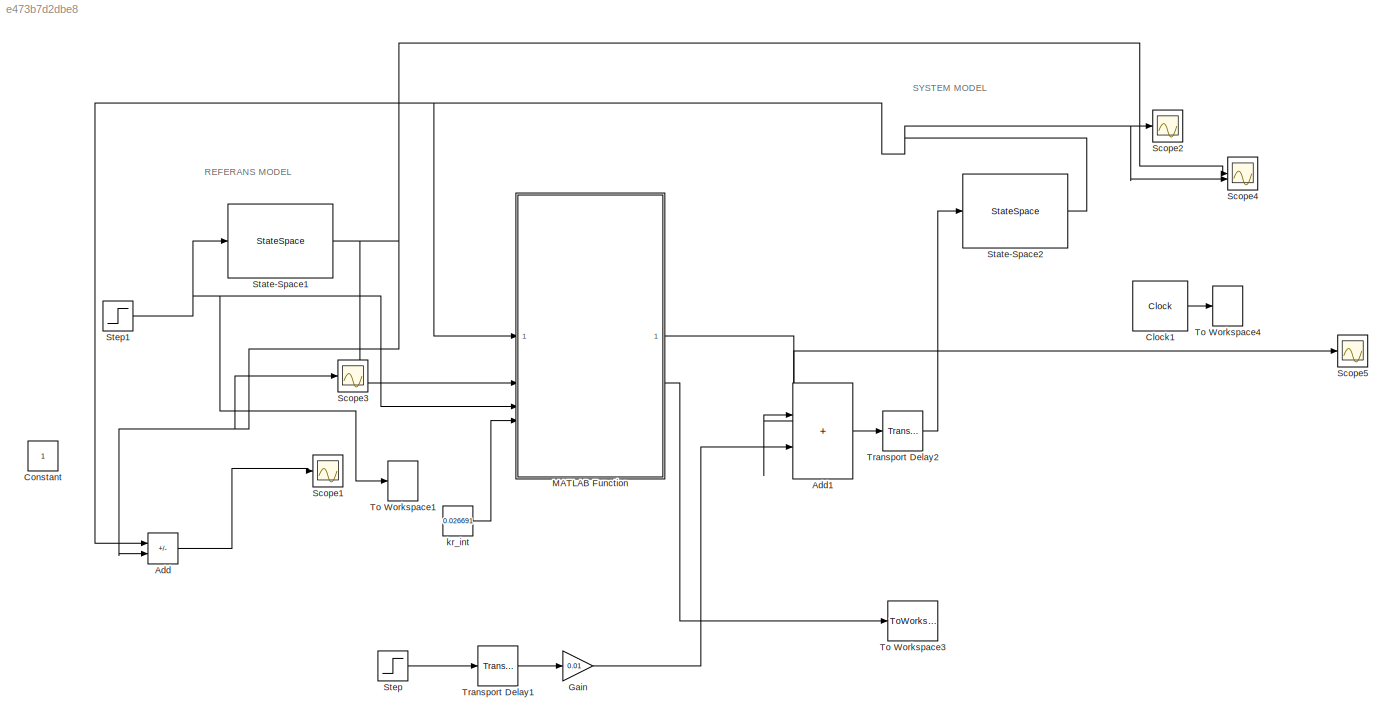
MODEL slx_e473b7d2dbe8
KIND model
CONFIG AbsTol = auto
CONFIG EnableMultiTasking = off
CONFIG FixedStep = 0.001
CONFIG MaxStep = auto
CONFIG MinStep = auto
CONFIG RelTol = 1e-3
CONFIG SampleTimeConstraint = Unconstrained
CONFIG SolverName = ode5
CONFIG StartTime = 0.0
CONFIG StopTime = 60
BLOCK [Sum] Add
  IconShape = rectangular
  Inputs = -+
BLOCK [Sum] Add1
  IconShape = rectangular
BLOCK [Clock] Clock1
  Decimation = 1
  DisplayTime = on
BLOCK [Constant] Constant
BLOCK [Gain] Gain
  Gain = 0.01
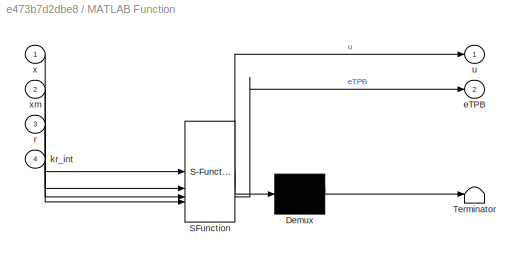
BLOCK [SubSystem] MATLAB Function
  ErrorFcn = Stateflow.Translate.translate
  LibrarySourceBlock = simulink/User-Defined\nFunctions/MATLAB Function
  PermitHierarchicalResolution = ExplicitOnly
  SFBlockType = MATLAB Function
  TreatAsAtomicUnit = on
BLOCK [Demux] MATLAB Function/ Demux 
  Outputs = 1
BLOCK [S-Function] MATLAB Function/ SFunction 
  EnableBusSupport = on
  FunctionName = sf_sfun
  PortCounts = [4 3]
  SFcnIsStateOwnerBlock = off
  SFunctionDeploymentMode = off
  Tag = Stateflow S-Function 2
BLOCK [Terminator] MATLAB Function/ Terminator 
BLOCK [Outport] MATLAB Function/eTPB
  Port = 2
BLOCK [Inport] MATLAB Function/kr_int
  Port = 4
BLOCK [Inport] MATLAB Function/r
  Port = 3
BLOCK [Outport] MATLAB Function/u
BLOCK [Inport] MATLAB Function/x
BLOCK [Inport] MATLAB Function/xm
  Port = 2
BLOCK [Scope] Scope1
  Floating = off
  NumInputPorts = 1
  ScopeSpecificationString = Simulink.scopes.TimeScopeBlockCfg('CurrentConfiguration', extmgr.ConfigurationSet(extmgr.Configuration('Core','General UI',true),extmgr.Configuration('Core','Source UI',true),extmgr.Configuration('Sources','WiredSimulink',true,'DataLoggingVariableName','ScopeData1'),extmgr.Configuration('Visuals','Time Domain',true,'SerializedDisplays',{struct('MinYLimReal','-0.18','MaxYLimReal','0.02','YLabelReal...<+1354ch>
BLOCK [Scope] Scope2
  Floating = off
  NumInputPorts = 1
  ScopeSpecificationString = Simulink.scopes.TimeScopeBlockCfg('CurrentConfiguration', extmgr.ConfigurationSet(extmgr.Configuration('Core','General UI',true),extmgr.Configuration('Core','Source UI',true),extmgr.Configuration('Sources','WiredSimulink',true,'DataLoggingVariableName','ScopeData2'),extmgr.Configuration('Visuals','Time Domain',true,'SerializedDisplays',{struct('MinYLimReal','-0.13824','MaxYLimReal','1.17107','YLab...<+1390ch>
BLOCK [Scope] Scope3
  Floating = off
  NumInputPorts = 1
  ScopeSpecificationString = Simulink.scopes.TimeScopeBlockCfg('CurrentConfiguration', extmgr.ConfigurationSet(extmgr.Configuration('Core','General UI',true),extmgr.Configuration('Core','Source UI',true),extmgr.Configuration('Sources','WiredSimulink',true,'DataLoggingVariableName','ScopeData3'),extmgr.Configuration('Visuals','Time Domain',true,'SerializedDisplays',{struct('MinYLimReal','-0.13856','MaxYLimReal','1.17225','YLab...<+1390ch>
BLOCK [Scope] Scope4
  Floating = off
  NumInputPorts = 2
  ScopeSpecificationString = Simulink.scopes.TimeScopeBlockCfg('CurrentConfiguration', extmgr.ConfigurationSet(extmgr.Configuration('Core','General UI',true),extmgr.Configuration('Core','Source UI',true),extmgr.Configuration('Sources','WiredSimulink',true,'DataLoggingVariableName','ScopeData4'),extmgr.Configuration('Visuals','Time Domain',true,'SerializedDisplays',{struct('MinYLimReal','-0.1313','MaxYLimReal','1.18167','YLabe...<+1390ch>
BLOCK [Scope] Scope5
  Floating = off
  NumInputPorts = 1
  ScopeSpecificationString = Simulink.scopes.TimeScopeBlockCfg('CurrentConfiguration', extmgr.ConfigurationSet(extmgr.Configuration('Core','General UI',true),extmgr.Configuration('Core','Source UI',true),extmgr.Configuration('Sources','WiredSimulink',true,'DataLoggingVariableName','ScopeData1'),extmgr.Configuration('Visuals','Time Domain',true,'SerializedDisplays',{struct('MinYLimReal','-1.36978','MaxYLimReal','0.52207','YLab...<+1374ch>
BLOCK [StateSpace] State-Space1
  A = A_ref
  B = B_ref
  C = C_ref
  D = D_ref
  InitialCondition = 0
BLOCK [StateSpace] State-Space2
  A = As
  B = Bs
  C = Cs
  D = Ds
  InitialCondition = 0
BLOCK [Step] Step
  SampleTime = 0
BLOCK [Step] Step1
  SampleTime = 0
BLOCK [ToWorkspace] To Workspace1
  MaxDataPoints = inf
  SampleTime = -1
  VariableName = r
BLOCK [ToWorkspace] To Workspace3
  MaxDataPoints = inf
  SampleTime = -1
  VariableName = eTPB
BLOCK [ToWorkspace] To Workspace4
  MaxDataPoints = inf
  SampleTime = -1
  VariableName = t
BLOCK [TransportDelay] Transport Delay1
  DelayTime = 5
BLOCK [TransportDelay] Transport Delay2
  DelayTime = 0.2
BLOCK [Constant] kr_int
  SampleTime = 0.001
  Value = 0.026691
ANNOTATION (root): REFERANS MODEL
ANNOTATION (root): SYSTEM MODEL
LINE Add1:1 -> Transport Delay2:1
LINE Add:1 -> Scope1:1
LINE Clock1:1 -> To Workspace4:1
LINE Gain:1 -> Add1:2
NET MATLAB Function:1 -> Add1:1, Scope5:1
LINE MATLAB Function:2 -> To Workspace3:1
NET State-Space1:1 -> Add:2, MATLAB Function:2, Scope3:1, Scope4:1
NET State-Space2:1 -> Add:1, MATLAB Function:1, Scope2:1, Scope4:2
NET Step1:1 -> MATLAB Function:3, State-Space1:1, To Workspace1:1
LINE Step:1 -> Transport Delay1:1
LINE Transport Delay1:1 -> Gain:1
LINE Transport Delay2:1 -> State-Space2:1
LINE kr_int:1 -> MATLAB Function:4
note: NET lines group one-source signal fan-out (src -> all destinations, sorted); 1:1 wires keep LINE
CHART MATLAB Function states=1 transitions=1
  STATE_LABEL 'eML_blk_kernel()'
  STATE_LABEL "SCRIPT:\n% HT-MRAK Kontrol Yapısı – MATLAB Function\nfunction [u,eTPB]  = fcn(x, xm, r,kr_int)\n\n    %% Sabitler\n    P = [2.799 3.125;\n         3.125 6.359];\n    B = [0; 1];\n   \n    k1 = 1;      % hata telafi kazancı\n    dt = 0.001;  % örnekleme süresi\n   \n\n    %% Hata\n    e = x - xm; % takip hatası\n eTPB = e' * P * B;    % skalar\n    %% Kontrol sinyali: u = kr*r - k1*BᵗPe\n    u_a = kr_int * r;      ...<+171ch>"
CHART  states=0 transitions=0
